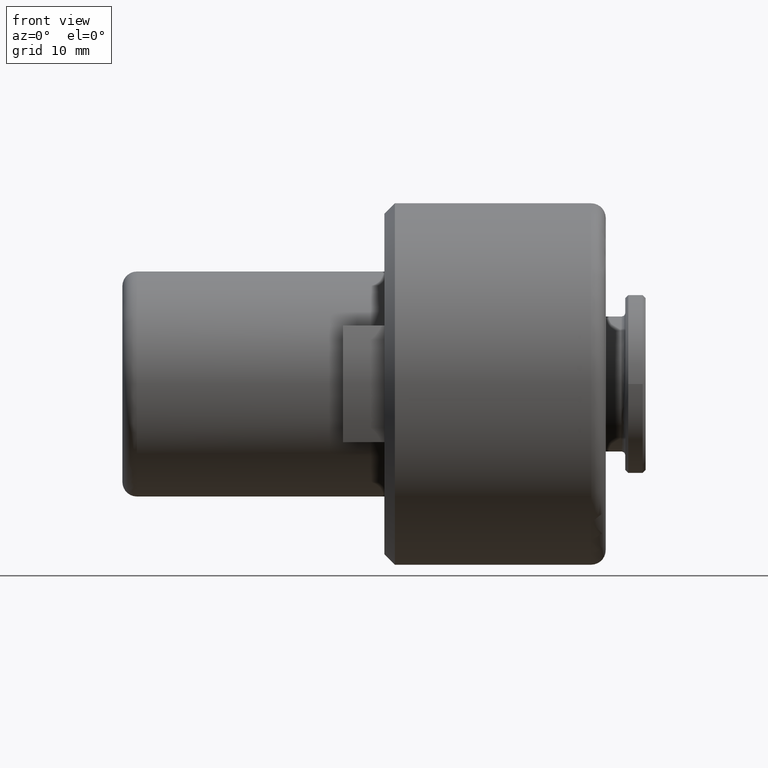
[diagram: clean part render]
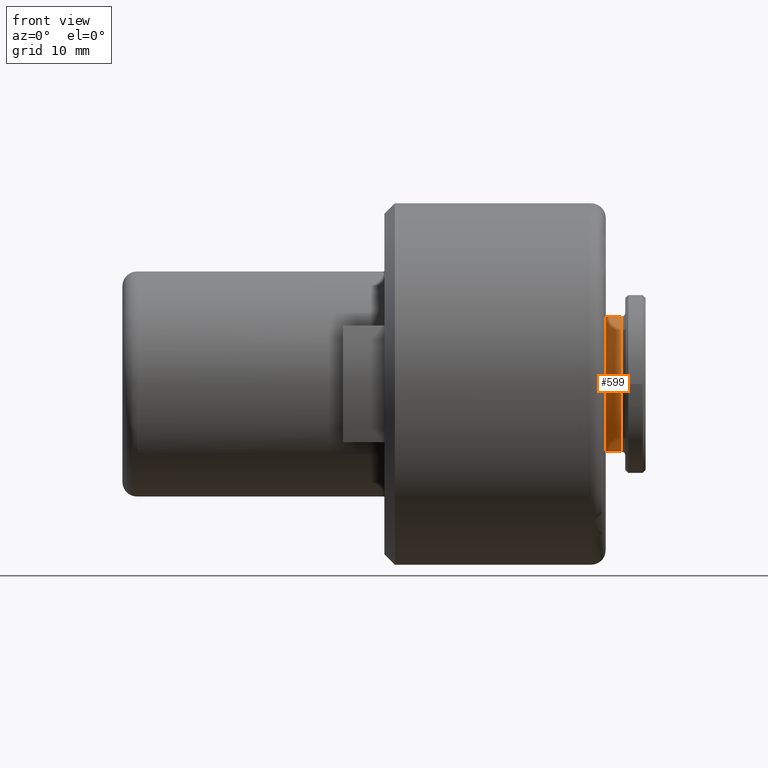
[diagram: same view with one face highlighted and labeled with its STEP entity id]
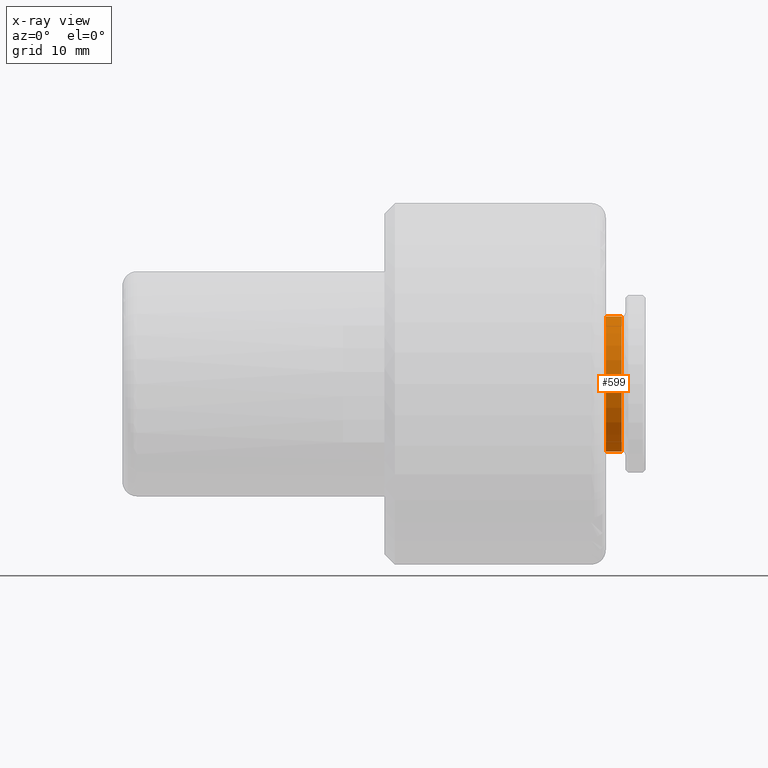
[diagram: x-ray of the same camera — body ghosted, the highlighted face saturated]
A machine part, front view. The second image highlights one B-rep face of the part: STEP entity #599.
The next image is the same camera in x-ray: the body ghosted, the highlighted face saturated — about 0% of this face is hidden behind the body in this view.
In plain terms, the highlighted cylindrical surface (partial cylindrical patch) has radius 9.3 mm, axis along (-1, 0, 0).
Its self-contained STEP definition (entity closure, byte-faithful):
#5 = CARTESIAN_POINT ( 'NONE',  ( 68.79999999999999700, 0.0000000000000000000, 9.300000000000000700 ) ) ;
#22 = AXIS2_PLACEMENT_3D ( 'NONE', #952, #1305, #479 ) ;
#72 = VERTEX_POINT ( 'NONE', #382 ) ;
#97 = EDGE_LOOP ( 'NONE', ( #860, #810, #1452, #1355 ) ) ;
#261 = EDGE_CURVE ( 'NONE', #465, #72, #569, .T. ) ;
#340 = DIRECTION ( 'NONE',  ( -1.000000000000000000, 0.0000000000000000000, 0.0000000000000000000 ) ) ;
#382 = CARTESIAN_POINT ( 'NONE',  ( 66.59999999999999400, 0.0000000000000000000, 9.300000000000000700 ) ) ;
#435 = CARTESIAN_POINT ( 'NONE',  ( 68.80000000013944800, -2.861192827788869800E-009, -9.299999999933453100 ) ) ;
#455 = CARTESIAN_POINT ( 'NONE',  ( 66.59999999999999400, 0.0000000000000000000, 0.0000000000000000000 ) ) ;
#465 = VERTEX_POINT ( 'NONE', #1444 ) ;
#469 = CARTESIAN_POINT ( 'NONE',  ( 68.79999999999999700, 0.0000000000000000000, 0.0000000000000000000 ) ) ;
#479 = DIRECTION ( 'NONE',  ( 0.0000000000000000000, 0.0000000000000000000, 1.000000000000000000 ) ) ;
#507 = CIRCLE ( 'NONE', #768, 9.300000000000000700 ) ;
#527 = VECTOR ( 'NONE', #340, 1000.000000000000000 ) ;
#528 = FACE_OUTER_BOUND ( 'NONE', #97, .T. ) ;
#569 = LINE ( 'NONE', #5, #527 ) ;
#572 = DIRECTION ( 'NONE',  ( 0.0000000000000000000, 0.0000000000000000000, 1.000000000000000000 ) ) ;
#588 = DIRECTION ( 'NONE',  ( 0.0000000000000000000, 0.0000000000000000000, 1.000000000000000000 ) ) ;
#599 = ADVANCED_FACE ( 'NONE', ( #528 ), #1062, .T. ) ;
#683 = VERTEX_POINT ( 'NONE', #1029 ) ;
#768 = AXIS2_PLACEMENT_3D ( 'NONE', #455, #1242, #572 ) ;
#780 = AXIS2_PLACEMENT_3D ( 'NONE', #469, #1259, #588 ) ;
#810 = ORIENTED_EDGE ( 'NONE', *, *, #1398, .F. ) ;
#860 = ORIENTED_EDGE ( 'NONE', *, *, #872, .F. ) ;
#872 = EDGE_CURVE ( 'NONE', #1155, #683, #1111, .T. ) ;
#902 = EDGE_CURVE ( 'NONE', #683, #72, #507, .T. ) ;
#952 = CARTESIAN_POINT ( 'NONE',  ( 68.79999999999999700, 0.0000000000000000000, 0.0000000000000000000 ) ) ;
#1029 = CARTESIAN_POINT ( 'NONE',  ( 66.59999999999999400, 1.138921523207038600E-015, -9.300000000000000700 ) ) ;
#1050 = CIRCLE ( 'NONE', #780, 9.300000000000000700 ) ;
#1062 = CYLINDRICAL_SURFACE ( 'NONE', #22, 9.300000000000000700 ) ;
#1111 = LINE ( 'NONE', #1352, #1410 ) ;
#1120 = DIRECTION ( 'NONE',  ( -1.000000000000000000, 0.0000000000000000000, 0.0000000000000000000 ) ) ;
#1155 = VERTEX_POINT ( 'NONE', #435 ) ;
#1242 = DIRECTION ( 'NONE',  ( -1.000000000000000000, -0.0000000000000000000, -0.0000000000000000000 ) ) ;
#1259 = DIRECTION ( 'NONE',  ( 1.000000000000000000, -0.0000000000000000000, -0.0000000000000000000 ) ) ;
#1305 = DIRECTION ( 'NONE',  ( -1.000000000000000000, 0.0000000000000000000, 0.0000000000000000000 ) ) ;
#1352 = CARTESIAN_POINT ( 'NONE',  ( 68.79999999999999700, 1.138921523207038600E-015, -9.300000000000000700 ) ) ;
#1355 = ORIENTED_EDGE ( 'NONE', *, *, #902, .F. ) ;
#1398 = EDGE_CURVE ( 'NONE', #465, #1155, #1050, .T. ) ;
#1410 = VECTOR ( 'NONE', #1120, 1000.000000000000000 ) ;
#1444 = CARTESIAN_POINT ( 'NONE',  ( 68.79999999999999700, -8.350807443872172500E-010, 9.299999999933453100 ) ) ;
#1452 = ORIENTED_EDGE ( 'NONE', *, *, #261, .T. ) ;